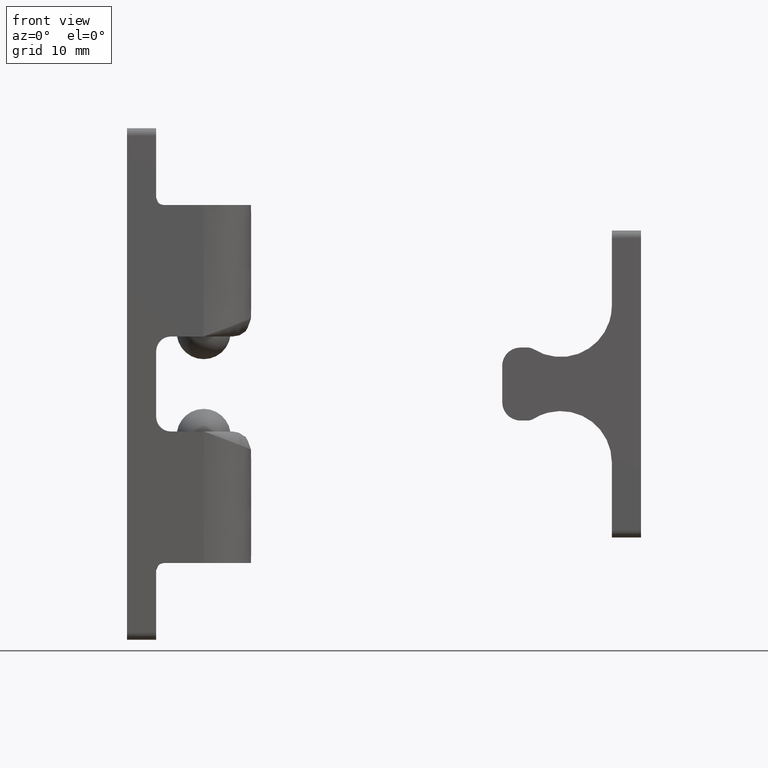
[diagram: clean part render]
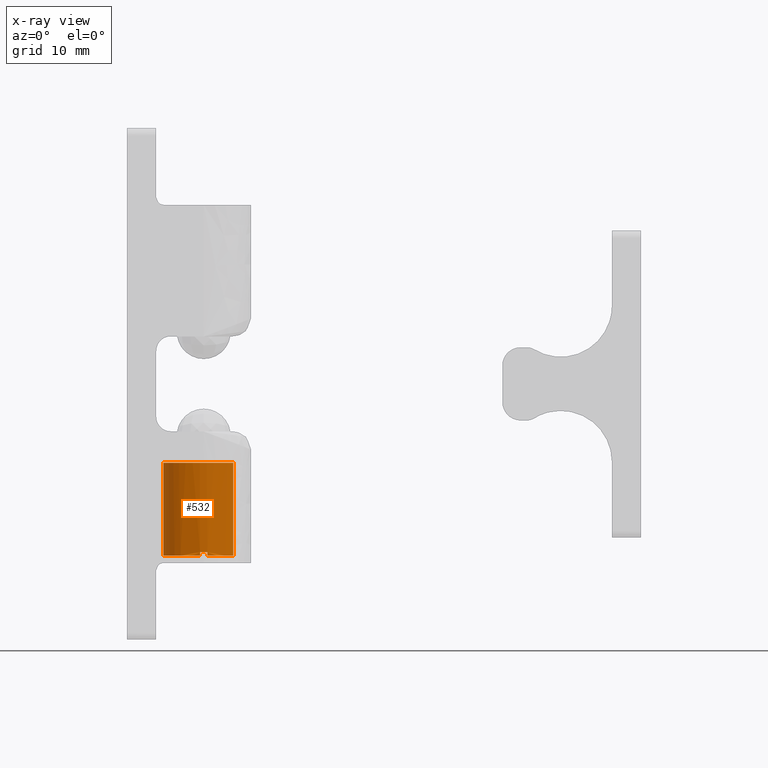
[diagram: x-ray — body ghosted, one internal face saturated and labeled with its STEP entity id]
A machine part, front view, then the same camera in x-ray: the body is ghosted and one INTERNAL B-rep face — a face not visible from any outside direction — is saturated and labeled: STEP entity #532.
In plain terms, the highlighted face is a freeform B-spline surface patch.
Its self-contained STEP definition (entity closure, byte-faithful):
#254=CARTESIAN_POINT('',(14.555025295880350,-3.715746113010919,-23.499999999999989));
#255=VERTEX_POINT('',#254);
#271=CARTESIAN_POINT('',(11.0,-5.477225000000000,-23.500000000000000));
#272=VERTEX_POINT('',#271);
#273=CARTESIAN_POINT('',(11.0,-5.477225000000000,-23.500000000000000));
#274=CARTESIAN_POINT('',(13.118104550214738,-5.283869639158898,-23.499999999999993));
#275=CARTESIAN_POINT('',(14.555025295880347,-3.715746113010919,-23.499999999999979));
#283=(BOUNDED_CURVE()B_SPLINE_CURVE(2,(#273,#274,#275),.UNSPECIFIED.,.F.,.U.)B_SPLINE_CURVE_WITH_KNOTS((3,3),(0.0,0.249392658890478),.UNSPECIFIED.)CURVE()GEOMETRIC_REPRESENTATION_ITEM()RATIONAL_B_SPLINE_CURVE((1.0,0.869592053683680,0.869275245256455))REPRESENTATION_ITEM(''));
#284=EDGE_CURVE('',#272,#255,#283,.T.);
#315=CARTESIAN_POINT('',(10.0,-5.477225575051659,-23.500000000000000));
#316=VERTEX_POINT('',#315);
#324=CARTESIAN_POINT('',(6.444974659238524,3.715746154648116,-23.499999999999989));
#325=VERTEX_POINT('',#324);
#326=CARTESIAN_POINT('',(6.444974659238524,3.715746154648116,-23.500000000000000));
#327=CARTESIAN_POINT('',(5.0,2.138833035155087,-23.499999999999996));
#328=CARTESIAN_POINT('',(5.0,0.0,-23.500000000000000));
#329=CARTESIAN_POINT('',(5.000000000000001,-5.020790110464025,-23.499999999999996));
#330=CARTESIAN_POINT('',(10.0,-5.477225575051661,-23.500000000000000));
#338=(BOUNDED_CURVE()B_SPLINE_CURVE(2,(#326,#327,#328,#329,#330),.UNSPECIFIED.,.F.,.U.)B_SPLINE_CURVE_WITH_KNOTS((3,2,3),(0.249392667694145,0.500000000000000,1.0),.UNSPECIFIED.)CURVE()GEOMETRIC_REPRESENTATION_ITEM()RATIONAL_B_SPLINE_CURVE((0.869275244433060,0.868956897594860,1.0,0.738548945875996,1.0))REPRESENTATION_ITEM(''));
#339=EDGE_CURVE('',#325,#316,#338,.T.);
#372=CARTESIAN_POINT('',(10.0,-5.477225575051659,-23.0));
#373=VERTEX_POINT('',#372);
#396=CARTESIAN_POINT('',(11.0,-5.477225000000000,-23.0));
#397=VERTEX_POINT('',#396);
#403=CARTESIAN_POINT('',(11.0,-5.477225000000000,-23.0));
#404=CARTESIAN_POINT('',(10.500000026247402,-5.522869123906474,-23.0));
#405=CARTESIAN_POINT('',(10.0,-5.477225575051661,-23.0));
#413=(BOUNDED_CURVE()B_SPLINE_CURVE(2,(#403,#404,#405),.UNSPECIFIED.,.F.,.U.)CURVE()GEOMETRIC_REPRESENTATION_ITEM()QUASI_UNIFORM_CURVE()RATIONAL_B_SPLINE_CURVE((1.0,0.995859195031894,1.0))REPRESENTATION_ITEM(''));
#414=EDGE_CURVE('',#397,#373,#413,.T.);
#426=CARTESIAN_POINT('',(11.0,-5.477225000000000,-23.500000000000000));
#427=CARTESIAN_POINT('',(11.0,-5.477225000000000,-23.0));
#428=QUASI_UNIFORM_CURVE('',1,(#426,#427),.UNSPECIFIED.,.F.,.U.);
#429=EDGE_CURVE('',#272,#397,#428,.T.);
#454=CARTESIAN_POINT('',(10.0,-5.477225575051659,-23.500000000000000));
#455=CARTESIAN_POINT('',(10.0,-5.477225575051659,-23.0));
#456=QUASI_UNIFORM_CURVE('',1,(#454,#455),.UNSPECIFIED.,.F.,.U.);
#457=EDGE_CURVE('',#316,#373,#456,.T.);
#463=CARTESIAN_POINT('',(14.555025352455679,-3.715746141886131,-10.482500000000000));
#464=CARTESIAN_POINT('',(10.839279210569551,-7.770771494341811,-10.482499999999998));
#465=CARTESIAN_POINT('',(6.784253858113869,-4.055025352455680,-10.482500000000000));
#466=CARTESIAN_POINT('',(2.729228505658191,-0.339279210569550,-10.482499999999998));
#467=CARTESIAN_POINT('',(6.444974647544321,3.715746141886131,-10.482500000000000));
#468=CARTESIAN_POINT('',(14.555025352455679,-3.715746141886131,-23.825437500000010));
#469=CARTESIAN_POINT('',(10.839279210569551,-7.770771494341811,-23.825437500000007));
#470=CARTESIAN_POINT('',(6.784253858113869,-4.055025352455680,-23.825437500000010));
#471=CARTESIAN_POINT('',(2.729228505658191,-0.339279210569550,-23.825437500000007));
#472=CARTESIAN_POINT('',(6.444974647544321,3.715746141886131,-23.825437500000010));
#480=(BOUNDED_SURFACE()B_SPLINE_SURFACE(2,1,((#463,#468),(#464,#469),(#465,#470),(#466,#471),(#467,#472)),.UNSPECIFIED.,.F.,.F.,.U.)B_SPLINE_SURFACE_WITH_KNOTS((3,2,3),(2,2),(0.0,9.112698372208087,18.225396744416170),(0.0,13.342937500000010),.UNSPECIFIED.)GEOMETRIC_REPRESENTATION_ITEM()RATIONAL_B_SPLINE_SURFACE(((1.0,1.0),(0.707106781186548,0.707106781186548),(1.0,1.0),(0.707106781186548,0.707106781186548),(1.0,1.0)))REPRESENTATION_ITEM('')SURFACE());
#481=ORIENTED_EDGE('',*,*,#284,.T.);
#482=CARTESIAN_POINT('',(14.555026138504649,-3.715745284063845,-10.800000000000001));
#483=VERTEX_POINT('',#482);
#484=CARTESIAN_POINT('',(14.555026138504649,-3.715745284063845,-10.800000000000001));
#485=CARTESIAN_POINT('',(14.555025295880350,-3.715746113010919,-23.499999999999989));
#486=QUASI_UNIFORM_CURVE('',1,(#484,#485),.UNSPECIFIED.,.F.,.U.);
#487=EDGE_CURVE('',#483,#255,#486,.T.);
#488=ORIENTED_EDGE('',*,*,#487,.F.);
#489=CARTESIAN_POINT('',(5.0,0.0,-10.800000000000001));
#490=VERTEX_POINT('',#489);
#491=CARTESIAN_POINT('',(14.555026138504648,-3.715745284063845,-10.800000000000001));
#492=CARTESIAN_POINT('',(12.920058614287257,-5.500000000000000,-10.799999999999999));
#493=CARTESIAN_POINT('',(10.500000000000000,-5.500000000000000,-10.800000000000001));
#494=CARTESIAN_POINT('',(5.000000000000001,-5.500000000000001,-10.800000000000001));
#495=CARTESIAN_POINT('',(5.0,0.0,-10.800000000000001));
#503=(BOUNDED_CURVE()B_SPLINE_CURVE(2,(#491,#492,#493,#494,#495),.UNSPECIFIED.,.F.,.U.)B_SPLINE_CURVE_WITH_KNOTS((3,2,3),(0.118415177149132,0.250000000000000,0.500000000000000),.UNSPECIFIED.)CURVE()GEOMETRIC_REPRESENTATION_ITEM()RATIONAL_B_SPLINE_CURVE((0.853959784779790,0.845838790752846,1.0,0.707106781186548,1.0))REPRESENTATION_ITEM(''));
#504=EDGE_CURVE('',#483,#490,#503,.T.);
#505=ORIENTED_EDGE('',*,*,#504,.T.);
#506=CARTESIAN_POINT('',(6.444973861495353,3.715745284063845,-10.800000000000001));
#507=VERTEX_POINT('',#506);
#508=CARTESIAN_POINT('',(5.0,0.0,-10.800000000000001));
#509=CARTESIAN_POINT('',(5.0,2.138832355465406,-10.800000000000001));
#510=CARTESIAN_POINT('',(6.444973861495261,3.715745284063930,-10.799999999999999));
#518=(BOUNDED_CURVE()B_SPLINE_CURVE(2,(#508,#509,#510),.UNSPECIFIED.,.F.,.U.)B_SPLINE_CURVE_WITH_KNOTS((3,3),(0.500000000000000,0.618415177149132),.UNSPECIFIED.)CURVE()GEOMETRIC_REPRESENTATION_ITEM()RATIONAL_B_SPLINE_CURVE((1.0,0.861267990433702,0.853959784779790))REPRESENTATION_ITEM(''));
#519=EDGE_CURVE('',#490,#507,#518,.T.);
#520=ORIENTED_EDGE('',*,*,#519,.T.);
#521=CARTESIAN_POINT('',(6.444973861495353,3.715745284063845,-10.800000000000001));
#522=CARTESIAN_POINT('',(6.444974659238524,3.715746154648116,-23.499999999999989));
#523=QUASI_UNIFORM_CURVE('',1,(#521,#522),.UNSPECIFIED.,.F.,.U.);
#524=EDGE_CURVE('',#507,#325,#523,.T.);
#525=ORIENTED_EDGE('',*,*,#524,.T.);
#526=ORIENTED_EDGE('',*,*,#339,.T.);
#527=ORIENTED_EDGE('',*,*,#457,.T.);
#528=ORIENTED_EDGE('',*,*,#414,.F.);
#529=ORIENTED_EDGE('',*,*,#429,.F.);
#530=EDGE_LOOP('',(#481,#488,#505,#520,#525,#526,#527,#528,#529));
#531=FACE_OUTER_BOUND('',#530,.T.);
#532=ADVANCED_FACE('',(#531),#480,.T.);